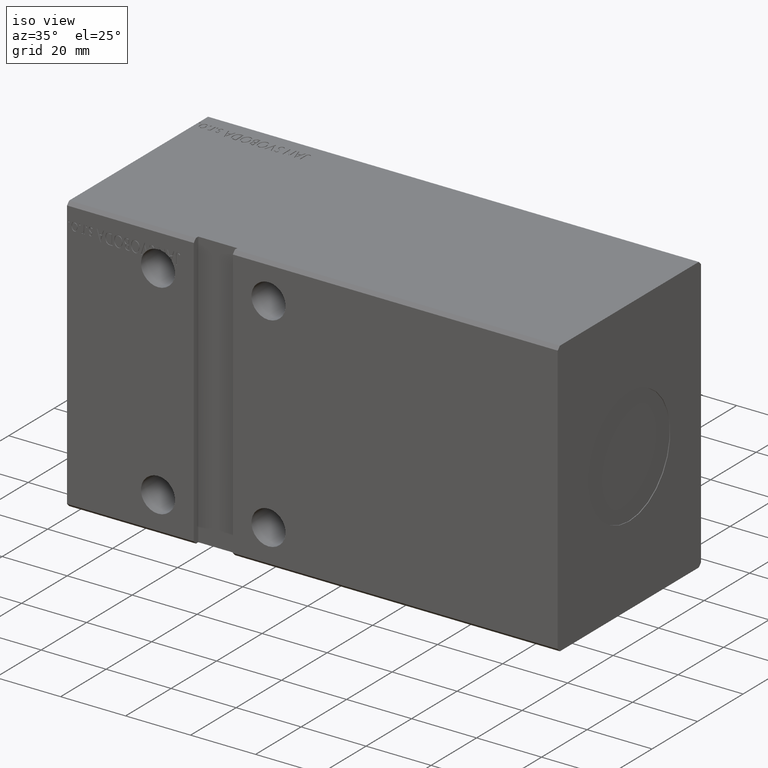
[diagram: clean part render]
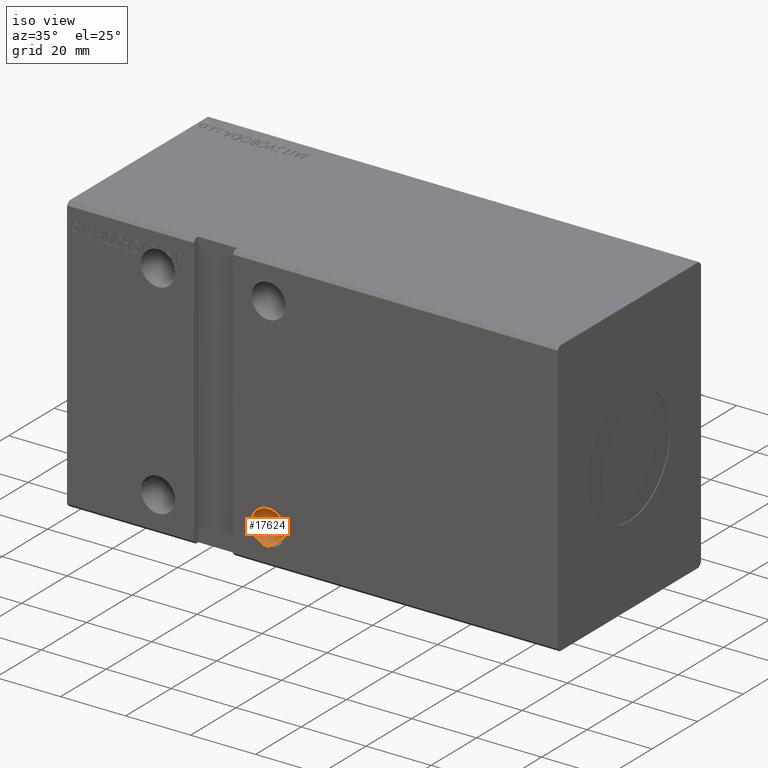
[diagram: same view with one face highlighted and labeled with its STEP entity id]
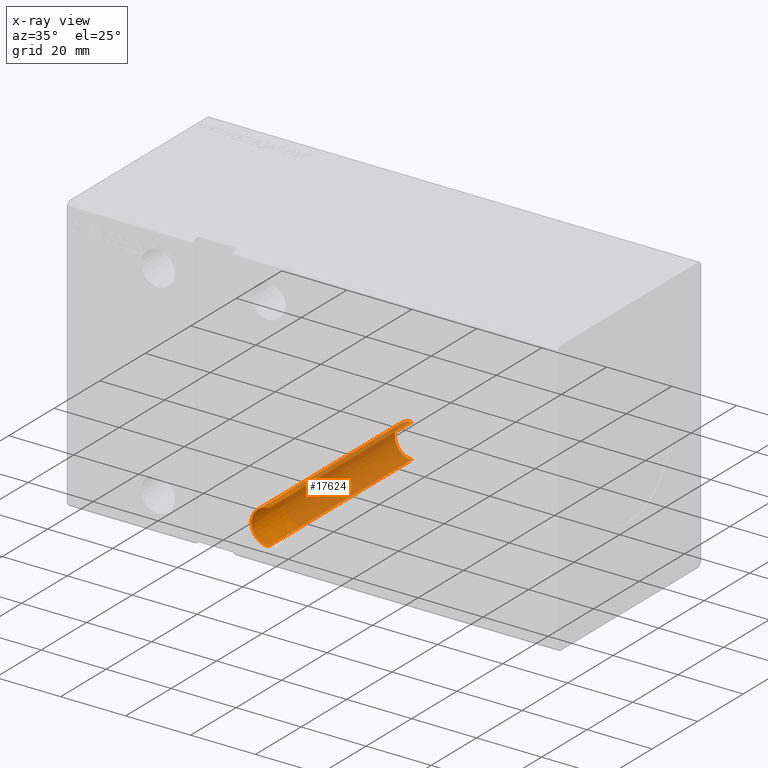
[diagram: x-ray of the same camera — body ghosted, the highlighted face saturated]
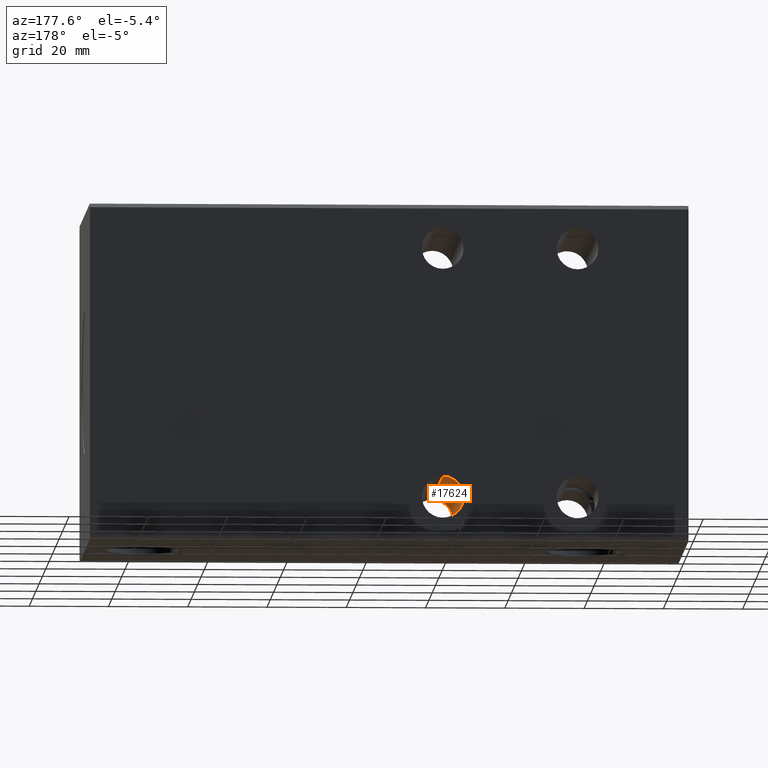
[diagram: same view with one face highlighted and labeled with its STEP entity id]
A machine part, iso view. The second image highlights one B-rep face of the part: STEP entity #17624.
The next image is the same camera in x-ray: the body ghosted, the highlighted face saturated — about 76% of this face is hidden behind the body in this view.
A second angle (auxiliary view) of the same face is appended — the face is thin or edge-on in the first view.
In plain terms, the highlighted cylindrical surface (edge-blend (fillet) strip) has radius 5.25 mm, axis along (-0, -1, -0).
Its self-contained STEP definition (entity closure, byte-faithful):
#534 = CYLINDRICAL_SURFACE ( 'NONE', #13172, 5.249999999999997335 ) ;
#1969 = VECTOR ( 'NONE', #9837, 1000.000000000000000 ) ;
#2332 = ORIENTED_EDGE ( 'NONE', *, *, #22556, .F. ) ;
#3452 = VERTEX_POINT ( 'NONE', #31372 ) ;
#3993 = DIRECTION ( 'NONE',  ( -0.000000000000000000, -1.000000000000000000, -5.507058653894625853E-17 ) ) ;
#5388 = DIRECTION ( 'NONE',  ( -0.000000000000000000, -1.000000000000000000, -5.507058653894625853E-17 ) ) ;
#5842 = AXIS2_PLACEMENT_3D ( 'NONE', #32225, #38638, #12972 ) ;
#6531 = LINE ( 'NONE', #11567, #1969 ) ;
#7540 = CARTESIAN_POINT ( 'NONE',  ( 62.00000000000000711, -31.50000000000000000, -31.50000000000000000 ) ) ;
#7732 = ORIENTED_EDGE ( 'NONE', *, *, #8478, .T. ) ;
#8397 = ORIENTED_EDGE ( 'NONE', *, *, #25299, .F. ) ;
#8478 = EDGE_CURVE ( 'NONE', #15363, #3452, #16818, .T. ) ;
#9698 = VERTEX_POINT ( 'NONE', #23889 ) ;
#9837 = DIRECTION ( 'NONE',  ( -0.000000000000000000, -1.000000000000000000, -5.507058653894625853E-17 ) ) ;
#10628 = ORIENTED_EDGE ( 'NONE', *, *, #14297, .F. ) ;
#11567 = CARTESIAN_POINT ( 'NONE',  ( 62.00000000000000711, 31.50000000000002842, -36.74999999999999289 ) ) ;
#12972 = DIRECTION ( 'NONE',  ( 0.000000000000000000, 0.000000000000000000, -1.000000000000000000 ) ) ;
#13172 = AXIS2_PLACEMENT_3D ( 'NONE', #24219, #5388, #40156 ) ;
#13723 = CARTESIAN_POINT ( 'NONE',  ( 62.00000000000000711, 31.50000000000002842, -26.24999999999999645 ) ) ;
#14297 = EDGE_CURVE ( 'NONE', #15363, #9698, #23685, .T. ) ;
#14661 = CIRCLE ( 'NONE', #23262, 5.249999999999997335 ) ;
#15097 = FACE_OUTER_BOUND ( 'NONE', #30354, .T. ) ;
#15363 = VERTEX_POINT ( 'NONE', #19058 ) ;
#16818 = LINE ( 'NONE', #13723, #40756 ) ;
#17408 = VERTEX_POINT ( 'NONE', #22992 ) ;
#17624 = ADVANCED_FACE ( 'NONE', ( #15097 ), #534, .F. ) ;
#19058 = CARTESIAN_POINT ( 'NONE',  ( 62.00000000000000711, 31.50000000000002842, -26.24999999999999645 ) ) ;
#22556 = EDGE_CURVE ( 'NONE', #9698, #17408, #6531, .T. ) ;
#22992 = CARTESIAN_POINT ( 'NONE',  ( 62.00000000000000711, -31.50000000000000000, -36.75000000000000000 ) ) ;
#23262 = AXIS2_PLACEMENT_3D ( 'NONE', #7540, #29281, #29886 ) ;
#23685 = CIRCLE ( 'NONE', #5842, 5.249999999999997335 ) ;
#23889 = CARTESIAN_POINT ( 'NONE',  ( 62.00000000000000711, 31.50000000000002842, -36.74999999999999289 ) ) ;
#24219 = CARTESIAN_POINT ( 'NONE',  ( 62.00000000000000711, 31.50000000000002842, -31.49999999999999289 ) ) ;
#25299 = EDGE_CURVE ( 'NONE', #17408, #3452, #14661, .T. ) ;
#29281 = DIRECTION ( 'NONE',  ( -0.000000000000000000, 1.000000000000000000, 0.000000000000000000 ) ) ;
#29886 = DIRECTION ( 'NONE',  ( 0.000000000000000000, 0.000000000000000000, 1.000000000000000000 ) ) ;
#30354 = EDGE_LOOP ( 'NONE', ( #10628, #7732, #8397, #2332 ) ) ;
#31372 = CARTESIAN_POINT ( 'NONE',  ( 62.00000000000000711, -31.50000000000000000, -26.25000000000000355 ) ) ;
#32225 = CARTESIAN_POINT ( 'NONE',  ( 62.00000000000000711, 31.50000000000002842, -31.49999999999999289 ) ) ;
#38638 = DIRECTION ( 'NONE',  ( 0.000000000000000000, -1.000000000000000000, -5.507058653894625853E-17 ) ) ;
#40156 = DIRECTION ( 'NONE',  ( 0.000000000000000000, 0.000000000000000000, -1.000000000000000000 ) ) ;
#40756 = VECTOR ( 'NONE', #3993, 1000.000000000000000 ) ;